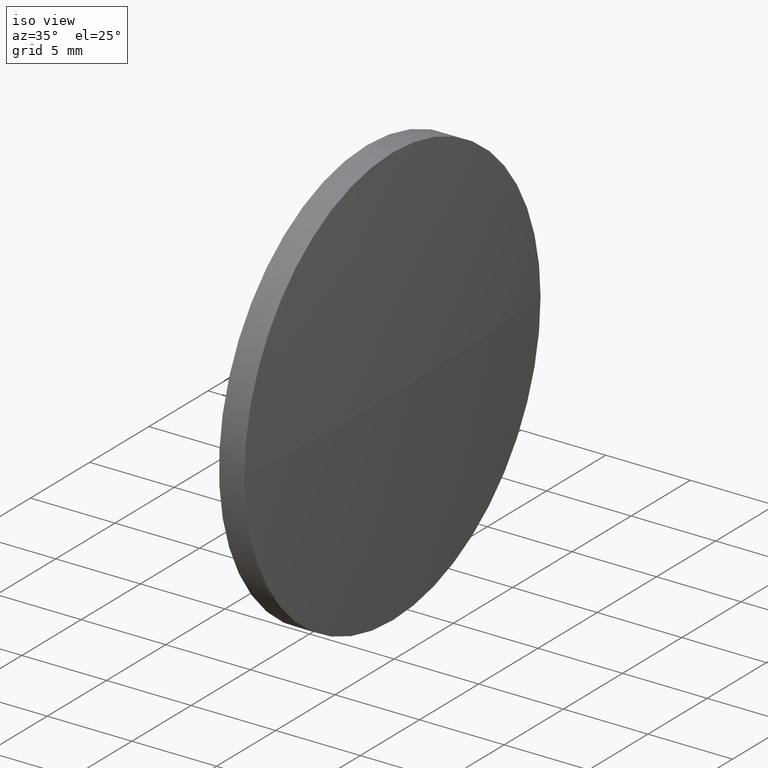
[diagram: clean part render]
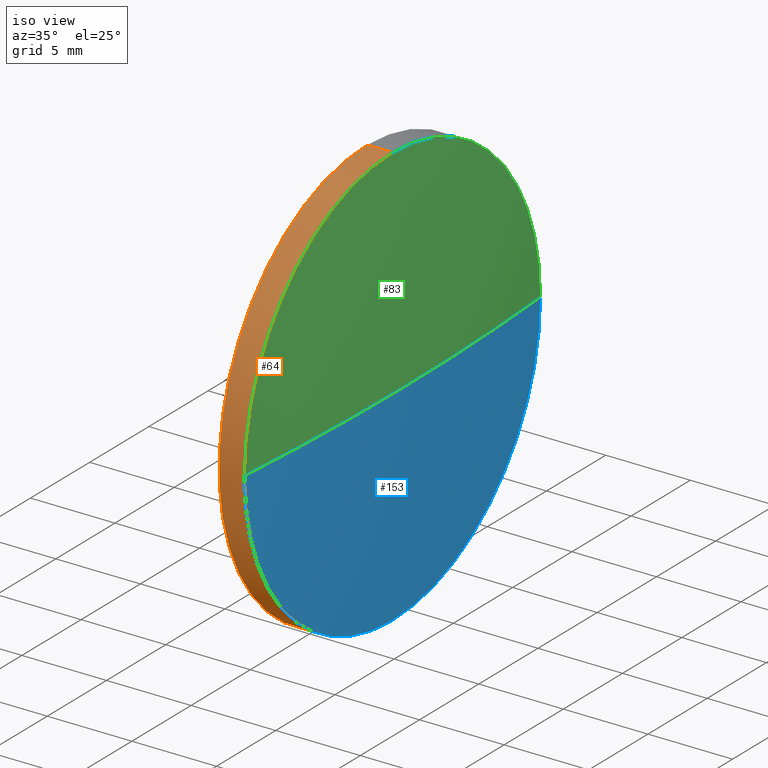
[diagram: same view with three faces highlighted in distinct colors, each labeled with its STEP entity id]
A machine part, iso view with three faces highlighted in distinct colors.
Their STEP definitions:

[orange] entity #64 — the highlighted cylindrical surface (partial cylindrical patch) has radius 12.5 mm, axis along (-1, -0, -0).
#7 = VERTEX_POINT ( 'NONE', #147 ) ;
#11 = ORIENTED_EDGE ( 'NONE', *, *, #125, .T. ) ;
#29 = CARTESIAN_POINT ( 'NONE',  ( 54.53091668428863400, 32.62964536423902500, 0.0000000000000000000 ) ) ;
#31 = DIRECTION ( 'NONE',  ( 0.0000000000000000000, 0.0000000000000000000, 1.000000000000000000 ) ) ;
#32 = DIRECTION ( 'NONE',  ( -1.000000000000000000, -0.0000000000000000000, -0.0000000000000000000 ) ) ;
#37 = AXIS2_PLACEMENT_3D ( 'NONE', #86, #131, #31 ) ;
#40 = LINE ( 'NONE', #89, #173 ) ;
#42 = CARTESIAN_POINT ( 'NONE',  ( 58.06002426272561900, 32.62964536423902500, -12.49999999999999600 ) ) ;
#45 = EDGE_CURVE ( 'NONE', #98, #7, #172, .T. ) ;
#46 = DIRECTION ( 'NONE',  ( -1.000000000000000000, -0.0000000000000000000, -0.0000000000000000000 ) ) ;
#52 = DIRECTION ( 'NONE',  ( 0.0000000000000000000, 0.0000000000000000000, 1.000000000000000000 ) ) ;
#53 = DIRECTION ( 'NONE',  ( -1.000000000000000000, -0.0000000000000000000, -0.0000000000000000000 ) ) ;
#54 = VECTOR ( 'NONE', #53, 1000.000000000000000 ) ;
#60 = ORIENTED_EDGE ( 'NONE', *, *, #141, .T. ) ;
#63 = VERTEX_POINT ( 'NONE', #129 ) ;
#64 = ADVANCED_FACE ( 'NONE', ( #144 ), #80, .T. ) ;
#66 = EDGE_CURVE ( 'NONE', #84, #63, #100, .T. ) ;
#74 = DIRECTION ( 'NONE',  ( 0.0000000000000000000, 0.0000000000000000000, 1.000000000000000000 ) ) ;
#80 = CYLINDRICAL_SURFACE ( 'NONE', #145, 12.49999999999999600 ) ;
#81 = AXIS2_PLACEMENT_3D ( 'NONE', #104, #102, #52 ) ;
#82 = CIRCLE ( 'NONE', #149, 12.49999999999999600 ) ;
#84 = VERTEX_POINT ( 'NONE', #135 ) ;
#86 = CARTESIAN_POINT ( 'NONE',  ( 58.06002426272561900, 32.62964536423902500, 0.0000000000000000000 ) ) ;
#89 = CARTESIAN_POINT ( 'NONE',  ( 54.53091668428863400, 32.62964536423902500, 12.49999999999999600 ) ) ;
#91 = LINE ( 'NONE', #150, #54 ) ;
#93 = DIRECTION ( 'NONE',  ( 0.0000000000000000000, 0.0000000000000000000, 1.000000000000000000 ) ) ;
#94 = ORIENTED_EDGE ( 'NONE', *, *, #110, .F. ) ;
#98 = VERTEX_POINT ( 'NONE', #42 ) ;
#100 = CIRCLE ( 'NONE', #81, 12.49999999999999600 ) ;
#102 = DIRECTION ( 'NONE',  ( -1.000000000000000000, -0.0000000000000000000, -0.0000000000000000000 ) ) ;
#104 = CARTESIAN_POINT ( 'NONE',  ( 56.56002426272561900, 32.62964536423902500, 0.0000000000000000000 ) ) ;
#110 = EDGE_CURVE ( 'NONE', #98, #84, #91, .T. ) ;
#111 = EDGE_LOOP ( 'NONE', ( #94, #179, #11, #60, #158 ) ) ;
#119 = VERTEX_POINT ( 'NONE', #134 ) ;
#125 = EDGE_CURVE ( 'NONE', #7, #119, #82, .T. ) ;
#129 = CARTESIAN_POINT ( 'NONE',  ( 56.56002426272561900, 32.62964536423902500, 12.49999999999999600 ) ) ;
#131 = DIRECTION ( 'NONE',  ( -1.000000000000000000, -0.0000000000000000000, -0.0000000000000000000 ) ) ;
#134 = CARTESIAN_POINT ( 'NONE',  ( 58.06002426272561900, 32.62964536423902500, 12.49999999999999600 ) ) ;
#135 = CARTESIAN_POINT ( 'NONE',  ( 56.56002426272561900, 32.62964536423902500, -12.49999999999999600 ) ) ;
#141 = EDGE_CURVE ( 'NONE', #119, #63, #40, .T. ) ;
#144 = FACE_OUTER_BOUND ( 'NONE', #111, .T. ) ;
#145 = AXIS2_PLACEMENT_3D ( 'NONE', #29, #32, #74 ) ;
#147 = CARTESIAN_POINT ( 'NONE',  ( 58.06002426272561900, 20.12964536423902500, -1.530808498934191700E-015 ) ) ;
#149 = AXIS2_PLACEMENT_3D ( 'NONE', #170, #46, #93 ) ;
#150 = CARTESIAN_POINT ( 'NONE',  ( 54.53091668428863400, 32.62964536423902500, -12.49999999999999600 ) ) ;
#158 = ORIENTED_EDGE ( 'NONE', *, *, #66, .F. ) ;
#167 = DIRECTION ( 'NONE',  ( -1.000000000000000000, -0.0000000000000000000, -0.0000000000000000000 ) ) ;
#170 = CARTESIAN_POINT ( 'NONE',  ( 58.06002426272561900, 32.62964536423902500, 0.0000000000000000000 ) ) ;
#172 = CIRCLE ( 'NONE', #37, 12.49999999999999600 ) ;
#173 = VECTOR ( 'NONE', #167, 1000.000000000000000 ) ;
#179 = ORIENTED_EDGE ( 'NONE', *, *, #45, .T. ) ;

[blue] entity #153 — the highlighted spherical surface has radius 156.5 mm.
#4 = FACE_OUTER_BOUND ( 'NONE', #57, .T. ) ;
#7 = VERTEX_POINT ( 'NONE', #147 ) ;
#9 = CARTESIAN_POINT ( 'NONE',  ( 58.56002426272561900, 32.62964536423903200, 0.0000000000000000000 ) ) ;
#18 = DIRECTION ( 'NONE',  ( -1.000000000000000000, -0.0000000000000000000, -0.0000000000000000000 ) ) ;
#21 = DIRECTION ( 'NONE',  ( -0.0000000000000000000, 0.0000000000000000000, -1.000000000000000000 ) ) ;
#23 = CARTESIAN_POINT ( 'NONE',  ( -97.93997573727435200, 32.62964536423902500, 0.0000000000000000000 ) ) ;
#24 = CARTESIAN_POINT ( 'NONE',  ( 58.06002426272561900, 45.12964536423902500, 0.0000000000000000000 ) ) ;
#25 = ORIENTED_EDGE ( 'NONE', *, *, #121, .F. ) ;
#31 = DIRECTION ( 'NONE',  ( 0.0000000000000000000, 0.0000000000000000000, 1.000000000000000000 ) ) ;
#33 = CARTESIAN_POINT ( 'NONE',  ( -97.93997573727435200, 32.62964536423902500, 0.0000000000000000000 ) ) ;
#37 = AXIS2_PLACEMENT_3D ( 'NONE', #86, #131, #31 ) ;
#42 = CARTESIAN_POINT ( 'NONE',  ( 58.06002426272561900, 32.62964536423902500, -12.49999999999999600 ) ) ;
#44 = DIRECTION ( 'NONE',  ( 0.0000000000000000000, 1.000000000000000000, 1.224646799147353200E-016 ) ) ;
#45 = EDGE_CURVE ( 'NONE', #98, #7, #172, .T. ) ;
#55 = DIRECTION ( 'NONE',  ( 0.0000000000000000000, 1.224646799147353200E-016, -1.000000000000000000 ) ) ;
#57 = EDGE_LOOP ( 'NONE', ( #25, #114, #106, #122 ) ) ;
#70 = EDGE_CURVE ( 'NONE', #168, #98, #174, .T. ) ;
#86 = CARTESIAN_POINT ( 'NONE',  ( 58.06002426272561900, 32.62964536423902500, 0.0000000000000000000 ) ) ;
#87 = EDGE_CURVE ( 'NONE', #157, #7, #97, .T. ) ;
#88 = DIRECTION ( 'NONE',  ( 1.000000000000000000, 0.0000000000000000000, 0.0000000000000000000 ) ) ;
#90 = AXIS2_PLACEMENT_3D ( 'NONE', #164, #176, #88 ) ;
#97 = CIRCLE ( 'NONE', #155, 156.4999999999999700 ) ;
#98 = VERTEX_POINT ( 'NONE', #42 ) ;
#106 = ORIENTED_EDGE ( 'NONE', *, *, #45, .F. ) ;
#114 = ORIENTED_EDGE ( 'NONE', *, *, #87, .T. ) ;
#116 = CARTESIAN_POINT ( 'NONE',  ( 58.06002426272561900, 32.62964536423902500, 0.0000000000000000000 ) ) ;
#117 = DIRECTION ( 'NONE',  ( 0.0000000000000000000, 0.0000000000000000000, 1.000000000000000000 ) ) ;
#121 = EDGE_CURVE ( 'NONE', #157, #168, #169, .T. ) ;
#122 = ORIENTED_EDGE ( 'NONE', *, *, #70, .F. ) ;
#127 = SPHERICAL_SURFACE ( 'NONE', #184, 156.4999999999999700 ) ;
#131 = DIRECTION ( 'NONE',  ( -1.000000000000000000, -0.0000000000000000000, -0.0000000000000000000 ) ) ;
#147 = CARTESIAN_POINT ( 'NONE',  ( 58.06002426272561900, 20.12964536423902500, -1.530808498934191700E-015 ) ) ;
#151 = AXIS2_PLACEMENT_3D ( 'NONE', #116, #18, #117 ) ;
#153 = ADVANCED_FACE ( 'NONE', ( #4 ), #127, .T. ) ;
#155 = AXIS2_PLACEMENT_3D ( 'NONE', #33, #55, #44 ) ;
#157 = VERTEX_POINT ( 'NONE', #9 ) ;
#164 = CARTESIAN_POINT ( 'NONE',  ( -97.93997573727435200, 32.62964536423902500, 0.0000000000000000000 ) ) ;
#168 = VERTEX_POINT ( 'NONE', #24 ) ;
#169 = CIRCLE ( 'NONE', #90, 156.4999999999999700 ) ;
#172 = CIRCLE ( 'NONE', #37, 12.49999999999999600 ) ;
#174 = CIRCLE ( 'NONE', #151, 12.49999999999999600 ) ;
#176 = DIRECTION ( 'NONE',  ( -0.0000000000000000000, 0.0000000000000000000, 1.000000000000000000 ) ) ;
#183 = DIRECTION ( 'NONE',  ( 0.0000000000000000000, 1.000000000000000000, 0.0000000000000000000 ) ) ;
#184 = AXIS2_PLACEMENT_3D ( 'NONE', #23, #21, #183 ) ;

[green] entity #83 — the highlighted spherical surface has radius 156.5 mm.
#1 = CARTESIAN_POINT ( 'NONE',  ( 58.06002426272561900, 32.62964536423902500, 0.0000000000000000000 ) ) ;
#2 = DIRECTION ( 'NONE',  ( -0.0000000000000000000, 0.0000000000000000000, -1.000000000000000000 ) ) ;
#7 = VERTEX_POINT ( 'NONE', #147 ) ;
#9 = CARTESIAN_POINT ( 'NONE',  ( 58.56002426272561900, 32.62964536423903200, 0.0000000000000000000 ) ) ;
#12 = ORIENTED_EDGE ( 'NONE', *, *, #121, .T. ) ;
#24 = CARTESIAN_POINT ( 'NONE',  ( 58.06002426272561900, 45.12964536423902500, 0.0000000000000000000 ) ) ;
#30 = SPHERICAL_SURFACE ( 'NONE', #175, 156.4999999999999700 ) ;
#33 = CARTESIAN_POINT ( 'NONE',  ( -97.93997573727435200, 32.62964536423902500, 0.0000000000000000000 ) ) ;
#43 = FACE_OUTER_BOUND ( 'NONE', #128, .T. ) ;
#44 = DIRECTION ( 'NONE',  ( 0.0000000000000000000, 1.000000000000000000, 1.224646799147353200E-016 ) ) ;
#46 = DIRECTION ( 'NONE',  ( -1.000000000000000000, -0.0000000000000000000, -0.0000000000000000000 ) ) ;
#55 = DIRECTION ( 'NONE',  ( 0.0000000000000000000, 1.224646799147353200E-016, -1.000000000000000000 ) ) ;
#56 = CARTESIAN_POINT ( 'NONE',  ( -97.93997573727435200, 32.62964536423902500, 0.0000000000000000000 ) ) ;
#59 = EDGE_CURVE ( 'NONE', #119, #168, #162, .T. ) ;
#73 = ORIENTED_EDGE ( 'NONE', *, *, #125, .F. ) ;
#82 = CIRCLE ( 'NONE', #149, 12.49999999999999600 ) ;
#83 = ADVANCED_FACE ( 'NONE', ( #43 ), #30, .T. ) ;
#87 = EDGE_CURVE ( 'NONE', #157, #7, #97, .T. ) ;
#88 = DIRECTION ( 'NONE',  ( 1.000000000000000000, 0.0000000000000000000, 0.0000000000000000000 ) ) ;
#90 = AXIS2_PLACEMENT_3D ( 'NONE', #164, #176, #88 ) ;
#93 = DIRECTION ( 'NONE',  ( 0.0000000000000000000, 0.0000000000000000000, 1.000000000000000000 ) ) ;
#97 = CIRCLE ( 'NONE', #155, 156.4999999999999700 ) ;
#101 = DIRECTION ( 'NONE',  ( 0.0000000000000000000, 0.0000000000000000000, 1.000000000000000000 ) ) ;
#118 = DIRECTION ( 'NONE',  ( 0.0000000000000000000, 1.000000000000000000, 0.0000000000000000000 ) ) ;
#119 = VERTEX_POINT ( 'NONE', #134 ) ;
#121 = EDGE_CURVE ( 'NONE', #157, #168, #169, .T. ) ;
#125 = EDGE_CURVE ( 'NONE', #7, #119, #82, .T. ) ;
#128 = EDGE_LOOP ( 'NONE', ( #146, #12, #165, #73 ) ) ;
#134 = CARTESIAN_POINT ( 'NONE',  ( 58.06002426272561900, 32.62964536423902500, 12.49999999999999600 ) ) ;
#136 = AXIS2_PLACEMENT_3D ( 'NONE', #1, #159, #101 ) ;
#146 = ORIENTED_EDGE ( 'NONE', *, *, #87, .F. ) ;
#147 = CARTESIAN_POINT ( 'NONE',  ( 58.06002426272561900, 20.12964536423902500, -1.530808498934191700E-015 ) ) ;
#149 = AXIS2_PLACEMENT_3D ( 'NONE', #170, #46, #93 ) ;
#155 = AXIS2_PLACEMENT_3D ( 'NONE', #33, #55, #44 ) ;
#157 = VERTEX_POINT ( 'NONE', #9 ) ;
#159 = DIRECTION ( 'NONE',  ( -1.000000000000000000, -0.0000000000000000000, -0.0000000000000000000 ) ) ;
#162 = CIRCLE ( 'NONE', #136, 12.49999999999999600 ) ;
#164 = CARTESIAN_POINT ( 'NONE',  ( -97.93997573727435200, 32.62964536423902500, 0.0000000000000000000 ) ) ;
#165 = ORIENTED_EDGE ( 'NONE', *, *, #59, .F. ) ;
#168 = VERTEX_POINT ( 'NONE', #24 ) ;
#169 = CIRCLE ( 'NONE', #90, 156.4999999999999700 ) ;
#170 = CARTESIAN_POINT ( 'NONE',  ( 58.06002426272561900, 32.62964536423902500, 0.0000000000000000000 ) ) ;
#175 = AXIS2_PLACEMENT_3D ( 'NONE', #56, #2, #118 ) ;
#176 = DIRECTION ( 'NONE',  ( -0.0000000000000000000, 0.0000000000000000000, 1.000000000000000000 ) ) ;